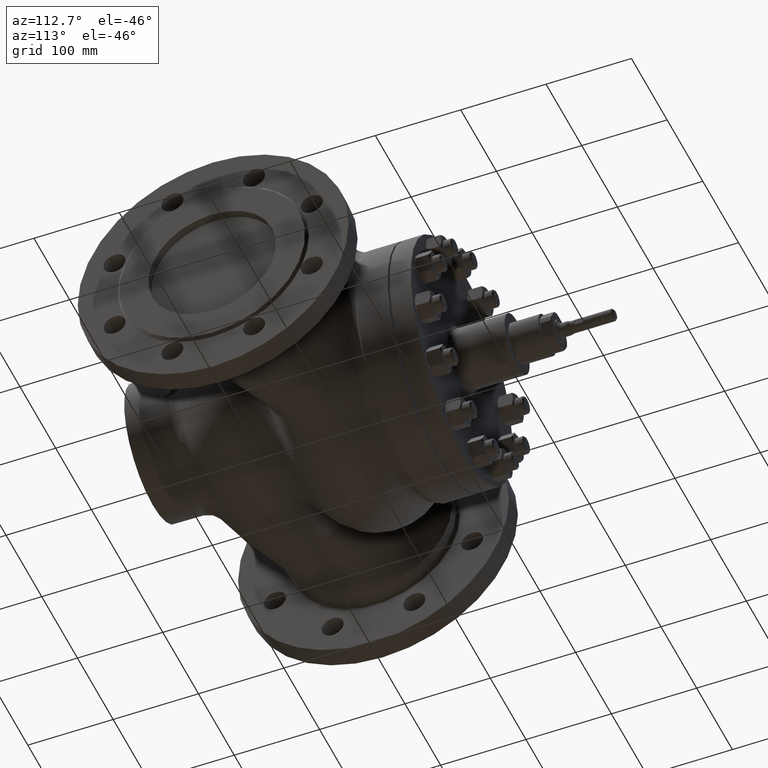
[diagram: clean part render]
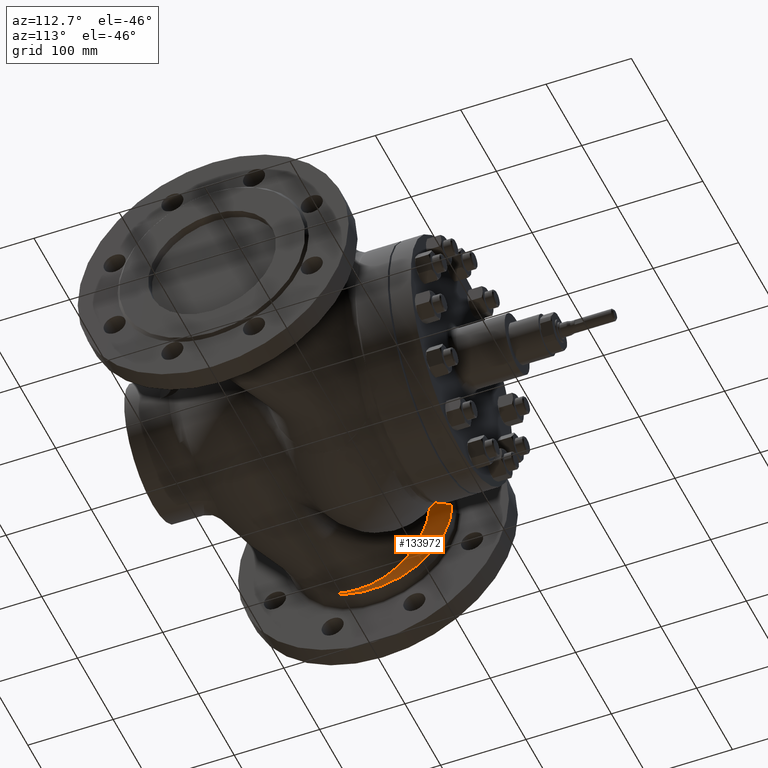
[diagram: same view with one face highlighted and labeled with its STEP entity id]
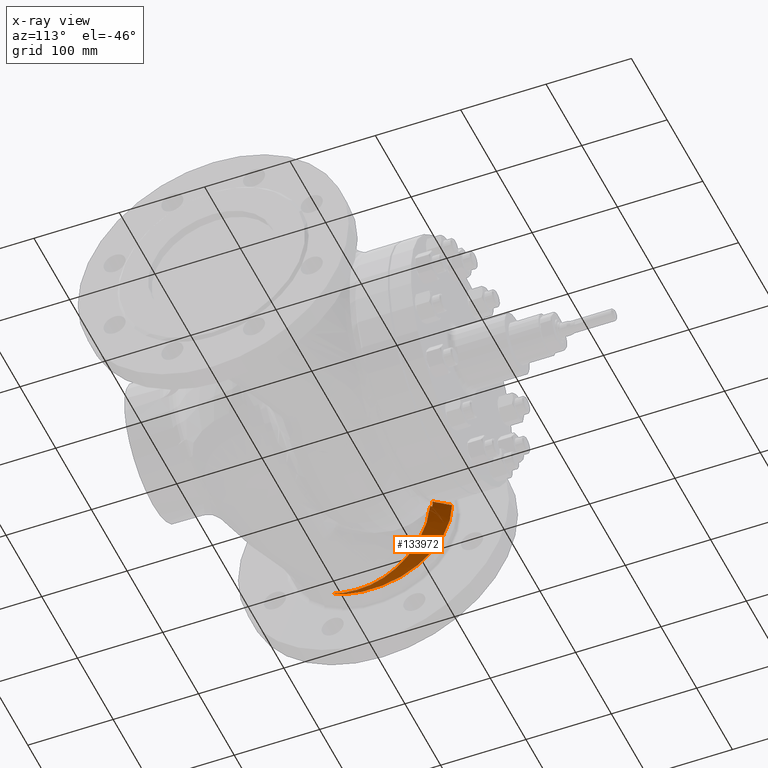
[diagram: x-ray of the same camera — body ghosted, the highlighted face saturated]
A machine part, auxiliary view. The second image highlights one B-rep face of the part: STEP entity #133972.
The next image is the same camera in x-ray: the body ghosted, the highlighted face saturated — about 1% of this face is hidden behind the body in this view.
In plain terms, the highlighted face is a freeform B-spline surface patch.
Its self-contained STEP definition (entity closure, byte-faithful):
#289 = CARTESIAN_POINT ( 'NONE',  ( -191.8175794426982700, 3.214944283689364000, -98.45283889971263100 ) ) ;
#450 = CARTESIAN_POINT ( 'NONE',  ( -193.3333333333332900, -49.92097353272462400, -87.57876151911243300 ) ) ;
#902 = CARTESIAN_POINT ( 'NONE',  ( -181.9740409912471600, 76.46312044660840000, -25.07533157837945100 ) ) ;
#963 = CARTESIAN_POINT ( 'NONE',  ( -188.6546077490848500, -39.32495430984335600, -90.30945669490455400 ) ) ;
#1126 = CARTESIAN_POINT ( 'NONE',  ( -186.6666666666668000, -25.31980540135791800, -93.80699280280528300 ) ) ;
#1584 = CARTESIAN_POINT ( 'NONE',  ( -183.7774007600126300, 58.95122802140115700, -63.39941368705834200 ) ) ;
#1810 = CARTESIAN_POINT ( 'NONE',  ( -179.9999999999998300, -5.918444033776837400, -92.14204834713319800 ) ) ;
#2254 = CARTESIAN_POINT ( 'NONE',  ( -186.1317036256428100, 31.08605916913197500, -87.58378693678510300 ) ) ;
#2485 = CARTESIAN_POINT ( 'NONE',  ( -199.9999999999999700, 25.16518651323065800, -100.1271344935774000 ) ) ;
#2934 = CARTESIAN_POINT ( 'NONE',  ( -187.4274231855169700, 11.17256158389363400, -94.83023557384648000 ) ) ;
#3159 = CARTESIAN_POINT ( 'NONE',  ( -193.3333333333332300, 35.86816296612467900, -91.55122125482365900 ) ) ;
#3603 = CARTESIAN_POINT ( 'NONE',  ( -188.2066662519728800, -15.26947508356077200, -96.08939294381762900 ) ) ;
#3834 = CARTESIAN_POINT ( 'NONE',  ( -186.6666666666665400, 52.68671211617257900, -74.04388472902307700 ) ) ;
#4494 = CARTESIAN_POINT ( 'NONE',  ( -180.0000000000001100, 63.12796588167109500, -50.58808316164950700 ) ) ;
#5156 = CARTESIAN_POINT ( 'NONE',  ( -199.9999999999995500, 101.3589498681718100, -20.26737986803755500 ) ) ;
#5741 = B_SPLINE_CURVE_WITH_KNOTS ( 'NONE', 3,
 ( #151098, #104029, #88985, #198181, #104695, #11227, #120393, #26931, #136077, #42624, #151762, #58337, #167488, #73998, #183172, #89660, #198847, #105362, #11889, #121076, #27587, #136726, #43298, #152431, #58998, #168145, #74669, #186599, #93103, #202278, #108789, #15305, #124493, #31035, #140170, #46745, #155892, #62459, #171588, #78092, #187290, #93782, #289, #109450, #15976, #125162, #31700, #140850, #47422, #156559, #63128, #172263, #78764, #187961, #94467, #963 ),
 .UNSPECIFIED., .F., .F.,
 ( 4, 2, 2, 2, 2, 2, 2, 2, 2, 2, 2, 2, 2, 2, 2, 2, 2, 2, 2, 2, 2, 2, 2, 2, 2, 2, 2, 4 ),
 ( 0.2136486100520226000, 0.2258004397348167000, 0.2318763545762137500, 0.2379522694176108000, 0.2501040991004048800, 0.2622559287831989800, 0.2683318436245960600, 0.2744077584659930800, 0.2865595881487871300, 0.2926355029901841500, 0.2956734604108827200, 0.2987114178315811700, 0.3108632475143752200, 0.3230150771971692600, 0.3290909920385662900, 0.3321289494592647400, 0.3351669068799632600, 0.3473187365627573000, 0.3533946514041542700, 0.3594705662455512900, 0.3625085236662498000, 0.3655464810869483200, 0.3716223959283453400, 0.3837742256111393300, 0.3959260552939333800, 0.3989640127146318900, 0.4020019701353304000, 0.4080778849767274200 ),
 .UNSPECIFIED. ) ;
#5839 = CARTESIAN_POINT ( 'NONE',  ( -193.3333333333333700, 94.50727232381753100, -1.582935171828836500E-013 ) ) ;
#6673 = CARTESIAN_POINT ( 'NONE',  ( -193.3333333333333400, 20.90188711694158700, 96.67262029826966300 ) ) ;
#7342 = CARTESIAN_POINT ( 'NONE',  ( -186.6666666666664900, 2.925801473457374500, 95.49382325450876900 ) ) ;
#8016 = CARTESIAN_POINT ( 'NONE',  ( -180.0000000000004000, -18.40886307866778500, 91.66279538185679600 ) ) ;
#8544 = CARTESIAN_POINT ( 'NONE',  ( -193.3333333333333700, 94.50727232381756000, 3.266557601915175200 ) ) ;
#8695 = CARTESIAN_POINT ( 'NONE',  ( -199.9999999999998600, -48.66894882667282500, 91.19017504635000600 ) ) ;
#9220 = CARTESIAN_POINT ( 'NONE',  ( -186.6666666666669400, 82.10724192835934300, 27.43536208644902200 ) ) ;
#9374 = CARTESIAN_POINT ( 'NONE',  ( -193.3333333333332900, -72.90135271258158400, 70.20790702958729000 ) ) ;
#9886 = CARTESIAN_POINT ( 'NONE',  ( -179.9999999999999100, 63.31864742485310400, 50.27370226677287900 ) ) ;
#10559 = CARTESIAN_POINT ( 'NONE',  ( -200.0000000000000900, 57.34325611503289400, 85.99995288766672300 ) ) ;
#11114 = B_SPLINE_SURFACE_WITH_KNOTS ( 'NONE', 3, 3, ( 
 ( #70646, #179820, #86308, #195502 ),
 ( #102012, #8544, #117712, #24234 ),
 ( #133413, #39933, #149080, #55661 ),
 ( #164796, #71321, #180481, #86991 ),
 ( #196183, #102684, #9220, #118390 ),
 ( #24917, #134080, #40608, #149758 ),
 ( #56329, #165461, #71988, #181153 ),
 ( #87647, #196852, #103351, #9886 ),
 ( #119061, #25582, #134736, #41286 ),
 ( #150435, #57001, #166133, #72660 ),
 ( #181839, #88323, #197515, #104032 ),
 ( #10559, #119735, #26257, #135408 ),
 ( #41953, #151101, #57673, #166802 ),
 ( #73332, #182513, #88988, #198184 ),
 ( #104698, #11230, #120395, #26934 ),
 ( #136079, #42627, #151764, #58339 ),
 ( #167491, #74001, #183175, #89662 ),
 ( #41309, #6673, #115837, #22361 ),
 ( #131535, #38065, #147202, #53788 ),
 ( #162922, #69467, #178614, #85114 ),
 ( #194322, #100819, #7342, #116513 ),
 ( #23035, #132207, #38743, #147881 ),
 ( #54462, #163594, #70134, #179287 ),
 ( #85783, #194991, #101493, #8016 ),
 ( #117188, #23718, #132892, #39412 ),
 ( #148566, #55143, #164269, #70795 ),
 ( #179965, #86462, #195653, #102163 ),
 ( #8695, #117861, #24387, #133555 ),
 ( #40086, #149234, #55809, #164947 ),
 ( #71469, #180632, #87130, #196339 ),
 ( #102830, #9374, #118544, #25064 ),
 ( #136956, #43533, #152661, #59227 ),
 ( #168374, #74901, #184066, #90556 ),
 ( #199734, #106255, #12772, #121953 ),
 ( #28484, #137626, #44192, #153332 ),
 ( #59897, #169039, #75561, #184746 ),
 ( #91229, #200407, #106923, #13451 ),
 ( #122618, #29148, #138299, #44873 ),
 ( #154003, #60577, #169712, #76232 ),
 ( #185408, #91908, #201083, #107587 ),
 ( #14120, #123302, #29828, #138969 ),
 ( #45558, #154690, #61245, #170391 ),
 ( #76902, #186085, #92582, #201769 ),
 ( #108267, #14791, #123975, #30514 ),
 ( #139647, #46232, #155374, #61929 ),
 ( #171068, #77584, #186761, #93263 ),
 ( #202436, #108947, #15462, #124654 ),
 ( #31193, #140334, #46900, #156050 ),
 ( #62618, #171743, #78253, #187447 ),
 ( #93944, #450, #109606, #16138 ),
 ( #125322, #31858, #141007, #47586 ),
 ( #156716, #63290, #172424, #78924 ),
 ( #188121, #94624, #1126, #110279 ),
 ( #16803, #126015, #32537, #141684 ),
 ( #48257, #157399, #63957, #173094 ),
 ( #79599, #188803, #95291, #1810 ),
 ( #110958, #17487, #126691, #33230 ),
 ( #142364, #48943, #158089, #64653 ),
 ( #173773, #80276, #189489, #95968 ),
 ( #2485, #111645, #18164, #127365 ),
 ( #33899, #143043, #49617, #158760 ),
 ( #65324, #174444, #80943, #190156 ),
 ( #96647, #3159, #112311, #18850 ),
 ( #128034, #34566, #143701, #50290 ),
 ( #159428, #65988, #175116, #81610 ),
 ( #190808, #97312, #3834, #112983 ),
 ( #19515, #128700, #35234, #144363 ),
 ( #50942, #160094, #66652, #175777 ),
 ( #82276, #191474, #97968, #4494 ),
 ( #113658, #20184, #129361, #35902 ),
 ( #145033, #51609, #160752, #67313 ),
 ( #176444, #82939, #192138, #98640 ),
 ( #5156, #114328, #20867, #130042 ),
 ( #36572, #145715, #52285, #161411 ),
 ( #67969, #177127, #83605, #192806 ),
 ( #99322, #5839, #115003, #21542 ) ),
 .UNSPECIFIED., .T., .F., .F.,
 ( 4, 1, 1, 1, 1, 1, 1, 1, 1, 1, 1, 1, 1, 1, 1, 1, 1, 1, 1, 1, 1, 1, 1, 1, 1, 1, 1, 1, 1, 1, 1, 1, 1, 1, 1, 1, 1, 1, 1, 1, 1, 1, 1, 1, 1, 1, 1, 1, 1, 1, 1, 1, 1, 1, 1, 1, 1, 1, 1, 1, 1, 1, 1, 1, 1, 1, 1, 1, 1, 1, 1, 1, 1, 4 ),
 ( 4, 4 ),
 ( 0.0000000000000000000, 0.01562500000000000000, 0.03125000000000000000, 0.04687500000000000000, 0.06250000000000000000, 0.07812500000000000000, 0.09375000000000000000, 0.1093750000000000000, 0.1250000000000000000, 0.1406250000000000000, 0.1562500000000000000, 0.1718750000000000000, 0.1796875000000000000, 0.1875000000000000000, 0.1953125000000000000, 0.2031250000000000000, 0.2109375000000000000, 0.2187500000000000000, 0.2265625000000000000, 0.2343750000000000000, 0.2421875000000000000, 0.2500000000000000000, 0.2656250000000000000, 0.2812500000000000000, 0.2968750000000000000, 0.3125000000000000000, 0.3281250000000000000, 0.3437500000000000000, 0.3593750000000000000, 0.3750000000000000000, 0.3906250000000000000, 0.4062500000000000000, 0.4218750000000000000, 0.4375000000000000000, 0.4531250000000000000, 0.4687500000000000000, 0.4843750000000000000, 0.5000000000000000000, 0.5156250000000000000, 0.5312500000000000000, 0.5468750000000000000, 0.5625000000000000000, 0.5781250000000000000, 0.5937500000000000000, 0.6093750000000000000, 0.6250000000000000000, 0.6406250000000000000, 0.6562500000000000000, 0.6718750000000000000, 0.6875000000000000000, 0.7031250000000000000, 0.7187500000000000000, 0.7343750000000000000, 0.7500000000000000000, 0.7578125000000000000, 0.7656250000000000000, 0.7734375000000000000, 0.7812500000000000000, 0.7890625000000000000, 0.7968750000000000000, 0.8046875000000000000, 0.8125000000000000000, 0.8281250000000000000, 0.8437500000000000000, 0.8593750000000000000, 0.8750000000000000000, 0.8906250000000000000, 0.9062500000000000000, 0.9218750000000000000, 0.9375000000000000000, 0.9531250000000000000, 0.9687500000000000000, 0.9843750000000000000, 1.000000000000000000 ),
 ( 0.0000000000000000000, 1.000000000000000000 ),
 .UNSPECIFIED. ) ;
#11227 = CARTESIAN_POINT ( 'NONE',  ( -196.3372858734267400, 96.42469750391258300, -20.21745622065716200 ) ) ;
#11230 = CARTESIAN_POINT ( 'NONE',  ( -193.3333333333333400, 34.60685697703345200, 92.03445323915933300 ) ) ;
#11889 = CARTESIAN_POINT ( 'NONE',  ( -195.4276705261027000, 69.72095159282783100, -69.60882688781013900 ) ) ;
#12122 = FACE_OUTER_BOUND ( 'NONE', #154096, .T. ) ;
#12772 = CARTESIAN_POINT ( 'NONE',  ( -186.6666666666666900, -88.85087132218276900, 44.78204028736921300 ) ) ;
#13451 = CARTESIAN_POINT ( 'NONE',  ( -179.9999999999997400, -96.18180900876487300, 17.88619426304316600 ) ) ;
#14120 = CARTESIAN_POINT ( 'NONE',  ( -200.0000000000001100, -101.3589359882901100, -20.26332560898092400 ) ) ;
#14791 = CARTESIAN_POINT ( 'NONE',  ( -193.3333333333332900, -90.12668647088349900, -46.51418663265113200 ) ) ;
#15305 = CARTESIAN_POINT ( 'NONE',  ( -193.5699902588197300, 33.98741121868031500, -92.45623087751343400 ) ) ;
#15462 = CARTESIAN_POINT ( 'NONE',  ( -186.6666666666668300, -73.05815852358792000, -66.95023891837917100 ) ) ;
#15976 = CARTESIAN_POINT ( 'NONE',  ( -191.5137780884690500, -1.891934551497569200, -98.50275582375235200 ) ) ;
#16138 = CARTESIAN_POINT ( 'NONE',  ( -180.0000000000001100, -52.42502294482810000, -80.35593446463718700 ) ) ;
#16579 = CARTESIAN_POINT ( 'NONE',  ( -182.1689488686512000, 74.68654650347249900, -31.93564134231031900 ) ) ;
#16803 = CARTESIAN_POINT ( 'NONE',  ( -199.9999999999998900, -10.23639697236889700, -102.8603672440106300 ) ) ;
#17259 = CARTESIAN_POINT ( 'NONE',  ( -184.4174853275628700, 52.12244406002383800, -71.49329197176149400 ) ) ;
#17487 = CARTESIAN_POINT ( 'NONE',  ( -193.3333333333333700, 6.295745206194295600, -99.13572239912637900 ) ) ;
#17929 = CARTESIAN_POINT ( 'NONE',  ( -186.4195012294109400, 27.10434208425719400, -89.56293560142651700 ) ) ;
#18164 = CARTESIAN_POINT ( 'NONE',  ( -186.6666666666668000, 16.03662267350373900, -93.36356765977041100 ) ) ;
#18621 = CARTESIAN_POINT ( 'NONE',  ( -187.5377608452828900, 8.561672534316166100, -95.32096621922363500 ) ) ;
#18850 = CARTESIAN_POINT ( 'NONE',  ( -179.9999999999996300, 25.45628341946112600, -85.09936438821598900 ) ) ;
#19285 = CARTESIAN_POINT ( 'NONE',  ( -188.3158234541196500, -20.52605839223695100, -95.40571550997682900 ) ) ;
#19515 = CARTESIAN_POINT ( 'NONE',  ( -200.0000000000000300, 73.09346063351441100, -73.09355443987844600 ) ) ;
#20184 = CARTESIAN_POINT ( 'NONE',  ( -193.3333333333332900, 83.24944419325412100, -46.72821687180075400 ) ) ;
#20867 = CARTESIAN_POINT ( 'NONE',  ( -186.6666666666665400, 84.21819032871560800, -18.54573146150572100 ) ) ;
#21542 = CARTESIAN_POINT ( 'NONE',  ( -180.0000000000000000, 77.12181697145258900, 6.505213034913026600E-016 ) ) ;
#22361 = CARTESIAN_POINT ( 'NONE',  ( -180.0000000000002000, 12.37528832436274400, 89.76359190765451500 ) ) ;
#23035 = CARTESIAN_POINT ( 'NONE',  ( -199.9999999999999400, 5.118198484677392000, 103.1150649654539700 ) ) ;
#23718 = CARTESIAN_POINT ( 'NONE',  ( -193.3333333333333700, -22.53642734311320300, 97.64031377368610300 ) ) ;
#24234 = CARTESIAN_POINT ( 'NONE',  ( -180.0000000000000000, 77.12181697145264500, 2.957281018545941700 ) ) ;
#24387 = CARTESIAN_POINT ( 'NONE',  ( -186.6666666666667400, -50.72350222593021800, 84.22553335313273200 ) ) ;
#24917 = CARTESIAN_POINT ( 'NONE',  ( -200.0000000000000900, 95.49454365704477300, 39.55628081678856500 ) ) ;
#25064 = CARTESIAN_POINT ( 'NONE',  ( -179.9999999999999700, -72.51713750801234000, 64.43680045044899900 ) ) ;
#25582 = CARTESIAN_POINT ( 'NONE',  ( -193.3333333333332900, 72.78217590921842400, 62.87212608693781800 ) ) ;
#26257 = CARTESIAN_POINT ( 'NONE',  ( -186.6666666666664600, 45.76530889203857600, 79.54219655061228900 ) ) ;
#26931 = CARTESIAN_POINT ( 'NONE',  ( -196.2820423369703900, 94.48241550986539000, -28.14120076851618500 ) ) ;
#26934 = CARTESIAN_POINT ( 'NONE',  ( -179.9999999999999100, 24.80387158644391100, 85.34016561455919700 ) ) ;
#27587 = CARTESIAN_POINT ( 'NONE',  ( -195.3041321139222400, 66.77114055987164000, -72.42175374431462800 ) ) ;
#28484 = CARTESIAN_POINT ( 'NONE',  ( -200.0000000000000000, -95.49453977081211100, 39.55513350599662200 ) ) ;
#29148 = CARTESIAN_POINT ( 'NONE',  ( -193.3333333333333700, -101.0517440097632800, 9.863056112734256000 ) ) ;
#29828 = CARTESIAN_POINT ( 'NONE',  ( -186.6666666666667100, -97.98838857007602600, -18.24515297531839400 ) ) ;
#30514 = CARTESIAN_POINT ( 'NONE',  ( -180.0000000000000900, -87.99970926419106800, -42.20466224610571300 ) ) ;
#30598 = VERTEX_POINT ( 'NONE', #165153 ) ;
#31035 = CARTESIAN_POINT ( 'NONE',  ( -193.2127155722365600, 28.20707745973740500, -94.46289799593243700 ) ) ;
#31193 = CARTESIAN_POINT ( 'NONE',  ( -199.9999999999998600, -65.49503772045255800, -79.97148913897082400 ) ) ;
#31335 = B_SPLINE_CURVE_WITH_KNOTS ( 'NONE', 3,
 ( #156498, #47359, #78704, #187896, #94403, #902, #110051, #16579, #125783, #32311, #141458, #48027, #157170, #63737, #172871, #79368, #188577, #95070, #1584, #110726, #17259, #126467, #32996, #142136, #48712, #157858, #64417, #173541, #80044, #189262, #95741, #2254, #111416, #17929, #127140, #33675, #142817, #49391, #158535, #65100, #174221, #80728, #189934, #96422, #2934, #112090, #18621, #127812, #34346, #143479, #50060, #159198, #65760, #174890, #81385, #190582, #97087, #3603, #112754, #19285, #128479, #35009, #144140, #50718, #159868, #66434 ),
 .UNSPECIFIED., .F., .F.,
 ( 4, 2, 2, 2, 2, 2, 2, 2, 2, 2, 2, 2, 2, 2, 2, 2, 2, 2, 2, 2, 2, 2, 2, 2, 2, 2, 2, 2, 2, 2, 2, 2, 4 ),
 ( 0.007485876484191446300, 0.01813539839246488700, 0.02346015934660161000, 0.02878492030073833600, 0.03943444220901179400, 0.05008396411728525300, 0.05540872507142199200, 0.05807110554849036900, 0.06073348602555874600, 0.07138300793383228800, 0.08203252984210585000, 0.08469491031917422700, 0.08735729079624260400, 0.09268205175037933000, 0.09800681270451608300, 0.1033315736586528100, 0.1086563346127895600, 0.1113187150898579100, 0.1139810955669262900, 0.1193058565210630100, 0.1219682369981313600, 0.1246306174751997400, 0.1272929979522680900, 0.1299553784293364700, 0.1326177589064048100, 0.1352801393834732200, 0.1406049003376099400, 0.1459296612917467000, 0.1512544222458834200, 0.1565791832000201800, 0.1619039441541569000, 0.1672287051082936600, 0.1778782270165671100 ),
 .UNSPECIFIED. ) ;
#31700 = CARTESIAN_POINT ( 'NONE',  ( -190.8590657999684800, -12.00087353249010600, -97.84971515619895400 ) ) ;
#31858 = CARTESIAN_POINT ( 'NONE',  ( -193.3333333333332900, -41.23304395628778700, -91.79526305463610900 ) ) ;
#32311 = CARTESIAN_POINT ( 'NONE',  ( -182.5508128301387400, 71.14843193086075200, -41.88014577521986600 ) ) ;
#32537 = CARTESIAN_POINT ( 'NONE',  ( -186.6666666666665200, -16.21885150560016000, -95.32981032166088700 ) ) ;
#32996 = CARTESIAN_POINT ( 'NONE',  ( -184.7558962741175300, 48.29004910800653500, -75.19265442431554900 ) ) ;
#33230 = CARTESIAN_POINT ( 'NONE',  ( -180.0000000000002800, -1.533191236860087700, -91.93444216601253100 ) ) ;
#33675 = CARTESIAN_POINT ( 'NONE',  ( -186.5873019407017600, 24.65615053955227500, -90.64430489146367600 ) ) ;
#33899 = CARTESIAN_POINT ( 'NONE',  ( -199.9999999999998900, 30.02759295108204200, -98.77818380116195800 ) ) ;
#34346 = CARTESIAN_POINT ( 'NONE',  ( -187.6302069509073600, 5.925789170406424900, -95.72354982757737200 ) ) ;
#34566 = CARTESIAN_POINT ( 'NONE',  ( -193.3333333333333700, 43.12567656552551700, -88.00896419622898700 ) ) ;
#35009 = CARTESIAN_POINT ( 'NONE',  ( -188.4221331941022600, -25.76497145674249000, -94.41575805987969300 ) ) ;
#35234 = CARTESIAN_POINT ( 'NONE',  ( -186.6666666666668300, 59.37835338323957000, -67.58151766447012700 ) ) ;
#35235 = CARTESIAN_POINT ( 'NONE',  ( -183.1115267623489400, 81.17896519179053900, -2.496040549049079300 ) ) ;
#35902 = CARTESIAN_POINT ( 'NONE',  ( -179.9999999999999100, 67.36798658760496000, -42.84798057258922900 ) ) ;
#36572 = CARTESIAN_POINT ( 'NONE',  ( -200.0000000000002000, 102.8603395705078800, -10.22849016503103800 ) ) ;
#38065 = CARTESIAN_POINT ( 'NONE',  ( -193.3333333333333400, 16.16379470551474300, 97.72655103205852400 ) ) ;
#38643 = CARTESIAN_POINT ( 'NONE',  ( -182.1972419402206400, 79.70103280339149900, -7.500000000000029300 ) ) ;
#38743 = CARTESIAN_POINT ( 'NONE',  ( -186.6666666666668300, -1.701686463142540600, 95.78495156320920500 ) ) ;
#39412 = CARTESIAN_POINT ( 'NONE',  ( -179.9999999999996000, -27.08263081279285700, 90.20306898094611400 ) ) ;
#39933 = CARTESIAN_POINT ( 'NONE',  ( -193.3333333333334600, 94.19243213872393000, 9.764133536988280700 ) ) ;
#40086 = CARTESIAN_POINT ( 'NONE',  ( -200.0000000000000000, -57.34325602368602400, 85.99992593353178400 ) ) ;
#40608 = CARTESIAN_POINT ( 'NONE',  ( -186.6666666666664000, 79.13202779066278900, 36.22075274957727200 ) ) ;
#41286 = CARTESIAN_POINT ( 'NONE',  ( -180.0000000000001100, 58.40355062428464800, 57.62665450748831800 ) ) ;
#41309 = CARTESIAN_POINT ( 'NONE',  ( -199.9999999999998900, 25.16518651323100300, 100.1271344935772400 ) ) ;
#41953 = CARTESIAN_POINT ( 'NONE',  ( -199.9999999999998600, 50.11466666726334300, 90.32512601314391500 ) ) ;
#42624 = CARTESIAN_POINT ( 'NONE',  ( -196.1588882782177700, 90.30142895257807800, -39.55139646646015400 ) ) ;
#42627 = CARTESIAN_POINT ( 'NONE',  ( -193.3333333333334300, 30.13070391522764200, 93.81942486006957400 ) ) ;
#43298 = CARTESIAN_POINT ( 'NONE',  ( -195.2052657726194700, 64.48093438012638500, -74.46819088533203500 ) ) ;
#43533 = CARTESIAN_POINT ( 'NONE',  ( -193.3333333333332900, -79.38703274592765500, 62.92367894565599300 ) ) ;
#44192 = CARTESIAN_POINT ( 'NONE',  ( -186.6666666666665700, -92.68517860791956800, 36.39010310272938400 ) ) ;
#44873 = CARTESIAN_POINT ( 'NONE',  ( -180.0000000000002300, -97.43449686212510100, 9.116374395841010200 ) ) ;
#45558 = CARTESIAN_POINT ( 'NONE',  ( -199.9999999999998600, -98.89533492106980400, -30.06704742389657900 ) ) ;
#46232 = CARTESIAN_POINT ( 'NONE',  ( -193.3333333333332900, -85.22221020225806900, -54.88522781973328800 ) ) ;
#46745 = CARTESIAN_POINT ( 'NONE',  ( -192.6512152717027400, 18.36261341719526300, -96.79439968490896700 ) ) ;
#46900 = CARTESIAN_POINT ( 'NONE',  ( -186.6666666666664000, -66.28443867060816800, -73.38079219029839400 ) ) ;
#47359 = CARTESIAN_POINT ( 'NONE',  ( -181.7047364507635100, 78.78854468310035500, -11.04424971519622100 ) ) ;
#47422 = CARTESIAN_POINT ( 'NONE',  ( -189.9752756264073000, -23.93186537018379700, -95.63580222326746100 ) ) ;
#47586 = CARTESIAN_POINT ( 'NONE',  ( -179.9999999999998000, -44.58886485791968800, -84.39670951812134100 ) ) ;
#48027 = CARTESIAN_POINT ( 'NONE',  ( -182.9384488492725600, 67.39260295143049000, -49.84791156221949400 ) ) ;
#48257 = CARTESIAN_POINT ( 'NONE',  ( -200.0000000000000600, -1.706066160272181800, -103.2848641510565800 ) ) ;
#48712 = CARTESIAN_POINT ( 'NONE',  ( -184.9276624178702100, 46.30445011466713400, -76.98490826278403200 ) ) ;
#48943 = CARTESIAN_POINT ( 'NONE',  ( -193.3333333333333400, 11.11006846975871200, -98.57582228732066200 ) ) ;
#49391 = CARTESIAN_POINT ( 'NONE',  ( -186.8088577389392000, 21.35761260958144800, -91.95407283022123600 ) ) ;
#49617 = CARTESIAN_POINT ( 'NONE',  ( -186.6666666666664300, 20.51159506397263900, -92.14040383690452500 ) ) ;
#50045 = VERTEX_POINT ( 'NONE', #160177 ) ;
#50060 = CARTESIAN_POINT ( 'NONE',  ( -187.7199686517801900, 3.267093746669102600, -96.04675019852739100 ) ) ;
#50189 = VERTEX_POINT ( 'NONE', #67392 ) ;
#50290 = CARTESIAN_POINT ( 'NONE',  ( -180.0000000000004000, 32.03913214115819100, -81.64657131220799600 ) ) ;
#50718 = CARTESIAN_POINT ( 'NONE',  ( -188.5478021285360900, -32.67501748806820700, -92.67091310365061900 ) ) ;
#50942 = CARTESIAN_POINT ( 'NONE',  ( -199.9999999999998900, 79.97148855168497100, -65.49486187666271100 ) ) ;
#51609 = CARTESIAN_POINT ( 'NONE',  ( -193.3333333333332600, 87.30209750598525900, -37.92029849943205700 ) ) ;
#52285 = CARTESIAN_POINT ( 'NONE',  ( -186.6666666666668000, 85.52003515742752900, -9.367399912201170400 ) ) ;
#53788 = CARTESIAN_POINT ( 'NONE',  ( -179.9999999999998900, 8.020534597647046100, 90.70232149684207500 ) ) ;
#54462 = CARTESIAN_POINT ( 'NONE',  ( -200.0000000000000000, -1.706066160271768200, 103.2848641510566000 ) ) ;
#55143 = CARTESIAN_POINT ( 'NONE',  ( -193.3333333333332900, -31.89577387634712800, 95.23101896146786800 ) ) ;
#55661 = CARTESIAN_POINT ( 'NONE',  ( -180.0000000000003700, 76.85661727515648100, 8.835420280903616000 ) ) ;
#55809 = CARTESIAN_POINT ( 'NONE',  ( -186.6666666666665200, -58.53938894143004000, 79.36742032427251600 ) ) ;
#56329 = CARTESIAN_POINT ( 'NONE',  ( -199.9999999999998300, 91.19017299607868700, 48.66833502140620700 ) ) ;
#57001 = CARTESIAN_POINT ( 'NONE',  ( -193.3333333333333400, 66.33536004784980400, 70.22517055791415400 ) ) ;
#57673 = CARTESIAN_POINT ( 'NONE',  ( -186.6666666666668600, 39.26842831408475100, 83.75298701143050600 ) ) ;
#58337 = CARTESIAN_POINT ( 'NONE',  ( -196.0115905202429200, 85.67981473313098200, -48.63538561557679400 ) ) ;
#58339 = CARTESIAN_POINT ( 'NONE',  ( -180.0000000000003400, 20.76993080379846600, 87.06839629729694300 ) ) ;
#58998 = CARTESIAN_POINT ( 'NONE',  ( -194.8779032842404600, 57.30620553967217700, -80.21629874995136300 ) ) ;
#59227 = CARTESIAN_POINT ( 'NONE',  ( -180.0000000000000000, -78.21811994385073800, 57.78096140069366300 ) ) ;
#59897 = CARTESIAN_POINT ( 'NONE',  ( -199.9999999999998900, -98.89533492107007400, 30.06704742389691600 ) ) ;
#60577 = CARTESIAN_POINT ( 'NONE',  ( -193.3333333333333700, -101.5364575584317400, 0.1221629052761824500 ) ) ;
#61245 = CARTESIAN_POINT ( 'NONE',  ( -186.6666666666666600, -95.83685129291409100, -27.22895721602729300 ) ) ;
#61929 = CARTESIAN_POINT ( 'NONE',  ( -179.9999999999998300, -83.66677876956291000, -49.96917140927811800 ) ) ;
#62459 = CARTESIAN_POINT ( 'NONE',  ( -192.3313596340632900, 12.36204516402194800, -97.74218351478471300 ) ) ;
#62618 = CARTESIAN_POINT ( 'NONE',  ( -200.0000000000001100, -57.34325602368665600, -85.99992593353150000 ) ) ;
#63128 = CARTESIAN_POINT ( 'NONE',  ( -189.4892280849468000, -29.80905456323810300, -93.88670899454177700 ) ) ;
#63290 = CARTESIAN_POINT ( 'NONE',  ( -193.3333333333332900, -32.14449822717467200, -95.14882981543782100 ) ) ;
#63737 = CARTESIAN_POINT ( 'NONE',  ( -183.1556199960317300, 65.25381065371706800, -53.72858098475082000 ) ) ;
#63957 = CARTESIAN_POINT ( 'NONE',  ( -186.6666666666668300, -8.444715970974424800, -95.84820090748264900 ) ) ;
#64417 = CARTESIAN_POINT ( 'NONE',  ( -185.2174546946870400, 42.89511811000119900, -79.83330273738755500 ) ) ;
#64653 = CARTESIAN_POINT ( 'NONE',  ( -179.9999999999998600, 2.830482825685771300, -91.50816226117211700 ) ) ;
#65100 = CARTESIAN_POINT ( 'NONE',  ( -187.0730043645562000, 17.15951360672794100, -93.31882987984677400 ) ) ;
#65324 = CARTESIAN_POINT ( 'NONE',  ( -199.9999999999999400, 34.81109047094186300, -97.19493914145611800 ) ) ;
#65760 = CARTESIAN_POINT ( 'NONE',  ( -187.8586006815797900, -1.166674062118038300, -96.41689038580011600 ) ) ;
#65988 = CARTESIAN_POINT ( 'NONE',  ( -193.3333333333333400, 51.38858522205095600, -82.89608358225766000 ) ) ;
#66434 = CARTESIAN_POINT ( 'NONE',  ( -188.6546077490848500, -39.32495430984335600, -90.30945669490455400 ) ) ;
#66652 = CARTESIAN_POINT ( 'NONE',  ( -186.6666666666665700, 65.44841188431850300, -60.44541009566969300 ) ) ;
#67313 = CARTESIAN_POINT ( 'NONE',  ( -180.0000000000000000, 70.91720520386743900, -34.64833386471803300 ) ) ;
#67392 = CARTESIAN_POINT ( 'NONE',  ( -183.2357956800813400, 81.05590492691305800, -7.500000000000000000 ) ) ;
#67969 = CARTESIAN_POINT ( 'NONE',  ( -200.0000000000000000, 103.1999999999999900, -3.421195893600266700 ) ) ;
#67970 = CARTESIAN_POINT ( 'NONE',  ( -183.2357956800813400, 81.05590492691305800, -7.500000000000000000 ) ) ;
#69467 = CARTESIAN_POINT ( 'NONE',  ( -193.3333333333333700, 11.38841948718968100, 98.53972701837591300 ) ) ;
#70134 = CARTESIAN_POINT ( 'NONE',  ( -186.6666666666664000, -7.901422669912701500, 95.86925241421690200 ) ) ;
#70646 = CARTESIAN_POINT ( 'NONE',  ( -200.0000000000000000, 103.1999999999999900, -2.380907970778167700E-013 ) ) ;
#70795 = CARTESIAN_POINT ( 'NONE',  ( -180.0000000000003700, -35.55322678022223900, 87.90238723685637000 ) ) ;
#71321 = CARTESIAN_POINT ( 'NONE',  ( -193.3333333333332300, 92.79801593260683000, 19.35302197594494100 ) ) ;
#71469 = CARTESIAN_POINT ( 'NONE',  ( -199.9999999999999100, -65.49503772045264300, 79.97148913897095200 ) ) ;
#71988 = CARTESIAN_POINT ( 'NONE',  ( -186.6666666666668300, 75.38817983590800500, 44.61772993411667400 ) ) ;
#72068 = CARTESIAN_POINT ( 'NONE',  ( -181.6779614552851900, 79.02359951267060000, -7.499999999989517700 ) ) ;
#72221 = ORIENTED_EDGE ( 'NONE', *, *, #141886, .T. ) ;
#72660 = CARTESIAN_POINT ( 'NONE',  ( -179.9999999999998900, 52.81915887652003500, 64.48840279398668000 ) ) ;
#73332 = CARTESIAN_POINT ( 'NONE',  ( -199.9999999999999400, 44.11204115475790400, 93.34235406817209900 ) ) ;
#73998 = CARTESIAN_POINT ( 'NONE',  ( -195.9049116706607900, 82.47999467974534600, -53.88393525402267400 ) ) ;
#74001 = CARTESIAN_POINT ( 'NONE',  ( -193.3333333333332300, 25.56340076037830000, 95.36673455477111400 ) ) ;
#74669 = CARTESIAN_POINT ( 'NONE',  ( -194.3463121886660800, 47.00970165152285300, -86.65344426929466700 ) ) ;
#74901 = CARTESIAN_POINT ( 'NONE',  ( -193.3333333333333700, -85.09460518825692100, 55.08918032529825100 ) ) ;
#75561 = CARTESIAN_POINT ( 'NONE',  ( -186.6666666666667700, -95.70441052775513000, 27.69796537052880200 ) ) ;
#76232 = CARTESIAN_POINT ( 'NONE',  ( -179.9999999999999100, -97.86984687912689700, 0.3664887158281899800 ) ) ;
#76902 = CARTESIAN_POINT ( 'NONE',  ( -200.0000000000000300, -95.49453977081248000, -39.55513350599613900 ) ) ;
#77584 = CARTESIAN_POINT ( 'NONE',  ( -193.3333333333332900, -79.54163999351968100, -62.72250057469161500 ) ) ;
#78092 = CARTESIAN_POINT ( 'NONE',  ( -192.0505548869416000, 7.301074381426687400, -98.23431879110957300 ) ) ;
#78253 = CARTESIAN_POINT ( 'NONE',  ( -186.6666666666668000, -58.95833467387388500, -79.06821852811961500 ) ) ;
#78704 = CARTESIAN_POINT ( 'NONE',  ( -181.7530529276008300, 78.38951967817384100, -14.57147257096698700 ) ) ;
#78764 = CARTESIAN_POINT ( 'NONE',  ( -189.2418846810992100, -32.71355809500494200, -92.91452482549668400 ) ) ;
#78924 = CARTESIAN_POINT ( 'NONE',  ( -180.0000000000000900, -36.29939983270438800, -87.65581979876549200 ) ) ;
#79368 = CARTESIAN_POINT ( 'NONE',  ( -183.2920593027917000, 63.88652344768384900, -56.02380129668367900 ) ) ;
#79599 = CARTESIAN_POINT ( 'NONE',  ( -199.9999999999999400, 5.118198484677016300, -103.1150649654539700 ) ) ;
#80044 = CARTESIAN_POINT ( 'NONE',  ( -185.5649806876089700, 38.62501882737942800, -82.97964330253094500 ) ) ;
#80276 = CARTESIAN_POINT ( 'NONE',  ( -193.3333333333334300, 15.87914954797385600, -97.77751413140293800 ) ) ;
#80728 = CARTESIAN_POINT ( 'NONE',  ( -187.2267469050638300, 14.60932737779508300, -94.02364975707374100 ) ) ;
#80943 = CARTESIAN_POINT ( 'NONE',  ( -186.6666666666669100, 24.92324286357500900, -90.64913617676305100 ) ) ;
#81385 = CARTESIAN_POINT ( 'NONE',  ( -188.0003690733691100, -6.469786288148472200, -96.55019928366229500 ) ) ;
#81610 = CARTESIAN_POINT ( 'NONE',  ( -179.9999999999998900, 39.47924343608788400, -76.68834497143873800 ) ) ;
#82276 = CARTESIAN_POINT ( 'NONE',  ( -200.0000000000000900, 85.99992703074616400, -57.34358454109445100 ) ) ;
#82939 = CARTESIAN_POINT ( 'NONE',  ( -193.3333333333335400, 90.48763779190433400, -28.79660131002314200 ) ) ;
#83605 = CARTESIAN_POINT ( 'NONE',  ( -186.6666666666666900, 85.81454464763501700, -3.111919310230716100 ) ) ;
#85114 = CARTESIAN_POINT ( 'NONE',  ( -180.0000000000003100, 3.665535877977951400, 91.39987645433815500 ) ) ;
#85729 = CARTESIAN_POINT ( 'NONE',  ( -191.9674785180104400, 92.72632173059685100, -1.420730385060165500E-013 ) ) ;
#85783 = CARTESIAN_POINT ( 'NONE',  ( -199.9999999999997200, -10.23639697236860800, 102.8603672440105300 ) ) ;
#86308 = CARTESIAN_POINT ( 'NONE',  ( -186.6666666666666900, 85.81454464763506000, -7.892991815694472300E-014 ) ) ;
#86462 = CARTESIAN_POINT ( 'NONE',  ( -193.3333333333333700, -40.99289038582976700, 91.90288561344377200 ) ) ;
#86855 = B_SPLINE_CURVE_WITH_KNOTS ( 'NONE', 3,
 ( #163538, #85729, #194936, #101435 ),
 .UNSPECIFIED., .F., .F.,
 ( 4, 4 ),
 ( 0.1802272802079417900, 0.8444236618825526900 ),
 .UNSPECIFIED. ) ;
#86991 = CARTESIAN_POINT ( 'NONE',  ( -179.9999999999994600, 75.67614806147585700, 17.52430619176076100 ) ) ;
#87130 = CARTESIAN_POINT ( 'NONE',  ( -186.6666666666667400, -65.90207600639155300, 73.71583749113007400 ) ) ;
#87231 = EDGE_CURVE ( 'NONE', #50189, #154561, #125117, .T. ) ;
#87647 = CARTESIAN_POINT ( 'NONE',  ( -200.0000000000000300, 85.99992703074632100, 57.34358454109390400 ) ) ;
#88323 = CARTESIAN_POINT ( 'NONE',  ( -193.3333333333333700, 59.22565026785273500, 76.88305467865885100 ) ) ;
#88985 = CARTESIAN_POINT ( 'NONE',  ( -196.3883760228650000, 98.25097652458697400, -8.098372755412585300 ) ) ;
#88988 = CARTESIAN_POINT ( 'NONE',  ( -186.6666666666666600, 33.85530422308398400, 86.70003811157050700 ) ) ;
#89660 = CARTESIAN_POINT ( 'NONE',  ( -195.7406855005425000, 77.80920209621949400, -60.53487193404900800 ) ) ;
#89662 = CARTESIAN_POINT ( 'NONE',  ( -179.9999999999998300, 16.63501637897021000, 88.54383606198970800 ) ) ;
#90556 = CARTESIAN_POINT ( 'NONE',  ( -179.9999999999999700, -83.28396372756029100, 50.58102892597190700 ) ) ;
#91229 = CARTESIAN_POINT ( 'NONE',  ( -200.0000000000000300, -101.3589359882897600, 20.26332560898128000 ) ) ;
#91908 = CARTESIAN_POINT ( 'NONE',  ( -193.3333333333332900, -101.0740235996983100, -9.629044088027352900 ) ) ;
#92582 = CARTESIAN_POINT ( 'NONE',  ( -186.6666666666666900, -92.86505145928477100, -35.92984895277469100 ) ) ;
#93103 = CARTESIAN_POINT ( 'NONE',  ( -193.9188381625459400, 39.68730577293824500, -90.17397547491035000 ) ) ;
#93263 = CARTESIAN_POINT ( 'NONE',  ( -180.0000000000001400, -78.68194168662664400, -57.17742628780047200 ) ) ;
#93782 = CARTESIAN_POINT ( 'NONE',  ( -191.8768424793179000, 4.240975506723732900, -98.41397132283842100 ) ) ;
#93944 = CARTESIAN_POINT ( 'NONE',  ( -199.9999999999998600, -48.66894882667288200, -91.19017504635006300 ) ) ;
#94403 = CARTESIAN_POINT ( 'NONE',  ( -181.8906017795603700, 77.20667269020570700, -21.58787035984648000 ) ) ;
#94467 = CARTESIAN_POINT ( 'NONE',  ( -188.8247715315679600, -37.46774376360752300, -91.11817288640115500 ) ) ;
#94624 = CARTESIAN_POINT ( 'NONE',  ( -193.3333333333334300, -22.79156550481588500, -97.58296448643054100 ) ) ;
#95070 = CARTESIAN_POINT ( 'NONE',  ( -183.5758259104546500, 61.01915104314355900, -60.52801397320187200 ) ) ;
#95291 = CARTESIAN_POINT ( 'NONE',  ( -186.6666666666665400, -2.239563194292219600, -95.79972055324012100 ) ) ;
#95741 = CARTESIAN_POINT ( 'NONE',  ( -185.9041744011740900, 34.16528815258345700, -85.83890885608403200 ) ) ;
#95968 = CARTESIAN_POINT ( 'NONE',  ( -180.0000000000001400, 7.166599125025145500, -90.85521079487490700 ) ) ;
#96422 = CARTESIAN_POINT ( 'NONE',  ( -187.3796954914695900, 12.03585524340987900, -94.64315586209865200 ) ) ;
#96647 = CARTESIAN_POINT ( 'NONE',  ( -200.0000000000000000, 41.07410273945645000, -94.77714968812748000 ) ) ;
#97087 = CARTESIAN_POINT ( 'NONE',  ( -188.1278691052368400, -11.75537302949623200, -96.37495414014594500 ) ) ;
#97312 = CARTESIAN_POINT ( 'NONE',  ( -193.3333333333332300, 59.09087483302008800, -77.00766174642689100 ) ) ;
#97968 = CARTESIAN_POINT ( 'NONE',  ( -186.6666666666667700, 70.75195293136278000, -52.83991695479781500 ) ) ;
#98640 = CARTESIAN_POINT ( 'NONE',  ( -180.0000000000000900, 73.67225811711283300, -26.26000583011573000 ) ) ;
#99322 = CARTESIAN_POINT ( 'NONE',  ( -200.0000000000000000, 103.1999999999999900, -2.380907970778167700E-013 ) ) ;
#100379 = VERTEX_POINT ( 'NONE', #146561 ) ;
#100819 = CARTESIAN_POINT ( 'NONE',  ( -193.3333333333331700, 6.568007450589600000, 99.11509288509601800 ) ) ;
#101435 = CARTESIAN_POINT ( 'NONE',  ( -183.1115267623489400, 81.17896519179058100, -3.647868313493390400E-014 ) ) ;
#101493 = CARTESIAN_POINT ( 'NONE',  ( -186.6666666666668300, -15.68470770990139400, 95.39531933590804200 ) ) ;
#102012 = CARTESIAN_POINT ( 'NONE',  ( -200.0000000000000000, 103.1999999999999900, 3.421195893599790600 ) ) ;
#102163 = CARTESIAN_POINT ( 'NONE',  ( -179.9999999999999100, -43.86840414654673700, 84.71957719454353300 ) ) ;
#102684 = CARTESIAN_POINT ( 'NONE',  ( -193.3333333333333700, 90.50128477882941500, 28.75013056821273900 ) ) ;
#102830 = CARTESIAN_POINT ( 'NONE',  ( -199.9999999999999100, -73.09346031486622100, 73.09346031915644900 ) ) ;
#103112 = EDGE_CURVE ( 'NONE', #154561, #100379, #31335, .T. ) ;
#103351 = CARTESIAN_POINT ( 'NONE',  ( -186.6666666666666300, 70.87907396015084800, 52.63032969154654200 ) ) ;
#104029 = CARTESIAN_POINT ( 'NONE',  ( -196.3954543958412600, 98.50000000000001400, -4.051627008513754000 ) ) ;
#104032 = CARTESIAN_POINT ( 'NONE',  ( -180.0000000000003700, 46.68687570382286400, 70.70628650831550000 ) ) ;
#104695 = CARTESIAN_POINT ( 'NONE',  ( -196.3585335494607300, 97.18360261392700700, -16.18070479718224800 ) ) ;
#104698 = CARTESIAN_POINT ( 'NONE',  ( -200.0000000000000300, 39.50834967232822200, 95.38159705145942300 ) ) ;
#105362 = CARTESIAN_POINT ( 'NONE',  ( -195.4852859856709700, 71.14098887618622800, -68.15657820527145800 ) ) ;
#106255 = CARTESIAN_POINT ( 'NONE',  ( -193.3333333333332900, -90.02052319820624900, 46.72549455664657400 ) ) ;
#106923 = CARTESIAN_POINT ( 'NONE',  ( -186.6666666666665200, -97.90751800193982000, 18.67857137835586900 ) ) ;
#107587 = CARTESIAN_POINT ( 'NONE',  ( -180.0000000000001100, -97.50133563193027400, -8.414338321721027500 ) ) ;
#108267 = CARTESIAN_POINT ( 'NONE',  ( -199.9999999999998900, -91.19017507422970000, -48.66894882592384200 ) ) ;
#108789 = CARTESIAN_POINT ( 'NONE',  ( -193.6880724207518900, 35.90235424433238600, -91.72960105188632000 ) ) ;
#108947 = CARTESIAN_POINT ( 'NONE',  ( -193.3333333333334300, -73.07580941922732600, -70.02184961876761800 ) ) ;
#109450 = CARTESIAN_POINT ( 'NONE',  ( -191.6374220162750800, 0.1454947945516529800, -98.52115634677021200 ) ) ;
#109606 = CARTESIAN_POINT ( 'NONE',  ( -186.6666666666666900, -51.17299823877636600, -83.96734799187483100 ) ) ;
#110051 = CARTESIAN_POINT ( 'NONE',  ( -182.0195391536668400, 76.04949886840341800, -26.80250514179814300 ) ) ;
#110279 = CARTESIAN_POINT ( 'NONE',  ( -180.0000000000001700, -27.84804529789995400, -90.03102111918002500 ) ) ;
#110726 = CARTESIAN_POINT ( 'NONE',  ( -184.1954679130666100, 54.50140744442657600, -68.88105128526237300 ) ) ;
#110958 = CARTESIAN_POINT ( 'NONE',  ( -199.9999999999998900, 10.21021342772148600, -102.7363625156833100 ) ) ;
#111416 = CARTESIAN_POINT ( 'NONE',  ( -186.2488800007992300, 29.51537379146375900, -88.40862461963570200 ) ) ;
#111645 = CARTESIAN_POINT ( 'NONE',  ( -193.3333333333333700, 20.60090459336720100, -96.74535107667392700 ) ) ;
#112090 = CARTESIAN_POINT ( 'NONE',  ( -187.5063835370460800, 9.435465323832410400, -95.16913728788839000 ) ) ;
#112311 = CARTESIAN_POINT ( 'NONE',  ( -186.6666666666664300, 30.66222319279289700, -88.32529282151982400 ) ) ;
#112754 = CARTESIAN_POINT ( 'NONE',  ( -188.2432505999403800, -17.02362585675783200, -95.89536109026379100 ) ) ;
#112983 = CARTESIAN_POINT ( 'NONE',  ( -179.9999999999998600, 46.28254939932507700, -71.08010771161930600 ) ) ;
#113658 = CARTESIAN_POINT ( 'NONE',  ( -199.9999999999999100, 91.19017299607870100, -48.66833502140650600 ) ) ;
#114328 = CARTESIAN_POINT ( 'NONE',  ( -193.3333333333330600, 92.78857009844371400, -19.40655566477163800 ) ) ;
#115003 = CARTESIAN_POINT ( 'NONE',  ( -186.6666666666666900, 85.81454464763506000, -7.892991815694472300E-014 ) ) ;
#115837 = CARTESIAN_POINT ( 'NONE',  ( -186.6666666666667700, 16.63858772065216100, 93.21810610296209600 ) ) ;
#116513 = CARTESIAN_POINT ( 'NONE',  ( -179.9999999999998000, -0.7164045036748513100, 91.87255362392151900 ) ) ;
#117188 = CARTESIAN_POINT ( 'NONE',  ( -200.0000000000002600, -20.26332560827337300, 101.3589361700561100 ) ) ;
#117712 = CARTESIAN_POINT ( 'NONE',  ( -186.6666666666666900, 85.81454464763510300, 3.111919310230558000 ) ) ;
#117861 = CARTESIAN_POINT ( 'NONE',  ( -193.3333333333332900, -49.69622552630151800, 87.70785419974136200 ) ) ;
#118390 = CARTESIAN_POINT ( 'NONE',  ( -180.0000000000005400, 73.71319907788928600, 26.12059360468530800 ) ) ;
#118544 = CARTESIAN_POINT ( 'NONE',  ( -186.6666666666666600, -72.70924511029696200, 67.32235374001814400 ) ) ;
#118593 = EDGE_CURVE ( 'NONE', #30598, #50189, #123116, .T. ) ;
#119061 = CARTESIAN_POINT ( 'NONE',  ( -199.9999999999998900, 79.97148855168529700, 65.49486187666258300 ) ) ;
#119735 = CARTESIAN_POINT ( 'NONE',  ( -193.3333333333332900, 51.55428250353573800, 82.77107471913950600 ) ) ;
#120393 = CARTESIAN_POINT ( 'NONE',  ( -196.3248230057958800, 95.98354815976506400, -22.21619877432355800 ) ) ;
#120395 = CARTESIAN_POINT ( 'NONE',  ( -186.6666666666666300, 29.70536428173868200, 88.68730942685925800 ) ) ;
#121076 = CARTESIAN_POINT ( 'NONE',  ( -195.3356896331882500, 67.51774430487520800, -71.72615751528960000 ) ) ;
#121630 = ORIENTED_EDGE ( 'NONE', *, *, #103112, .T. ) ;
#121953 = CARTESIAN_POINT ( 'NONE',  ( -180.0000000000001400, -87.68121944615926100, 42.83858601809186000 ) ) ;
#122618 = CARTESIAN_POINT ( 'NONE',  ( -199.9999999999998900, -102.8603675835823900, 10.23639697118088100 ) ) ;
#123116 = B_SPLINE_CURVE_WITH_KNOTS ( 'NONE', 3,
 ( #145717, #35235, #161412, #67970 ),
 .UNSPECIFIED., .F., .F.,
 ( 4, 4 ),
 ( 0.07956218781139019800, 0.08708777487350467800 ),
 .UNSPECIFIED. ) ;
#123302 = CARTESIAN_POINT ( 'NONE',  ( -193.3333333333333700, -99.67366227918306300, -19.25423929214965900 ) ) ;
#123975 = CARTESIAN_POINT ( 'NONE',  ( -186.6666666666666900, -89.06319786753726900, -44.35942443937842200 ) ) ;
#124493 = CARTESIAN_POINT ( 'NONE',  ( -193.5104557037975000, 33.02670356237884900, -92.80369670218343000 ) ) ;
#124654 = CARTESIAN_POINT ( 'NONE',  ( -180.0000000000002300, -73.04050762794850000, -63.87862821799073000 ) ) ;
#125117 = B_SPLINE_CURVE_WITH_KNOTS ( 'NONE', 3,
 ( #178515, #194218, #38643, #147776 ),
 .UNSPECIFIED., .F., .F.,
 ( 4, 4 ),
 ( 0.0000000000000000000, 0.002560685995065894700 ),
 .UNSPECIFIED. ) ;
#125162 = CARTESIAN_POINT ( 'NONE',  ( -191.1311888170354800, -7.978157553697965200, -98.26030880743272200 ) ) ;
#125322 = CARTESIAN_POINT ( 'NONE',  ( -200.0000000000000300, -39.55513350547184400, -95.49453982289350100 ) ) ;
#125783 = CARTESIAN_POINT ( 'NONE',  ( -182.2878113819818400, 73.61747358308500100, -35.29405492402229800 ) ) ;
#126015 = CARTESIAN_POINT ( 'NONE',  ( -193.3333333333332300, -13.22762423898452900, -99.09508878283575900 ) ) ;
#126467 = CARTESIAN_POINT ( 'NONE',  ( -184.6992551199990100, 48.93758966241987500, -74.58340665321441100 ) ) ;
#126691 = CARTESIAN_POINT ( 'NONE',  ( -186.6666666666668300, 2.381276984667103600, -95.53508228256944800 ) ) ;
#127140 = CARTESIAN_POINT ( 'NONE',  ( -186.4758839490168600, 26.29041711684440600, -89.93448175162522800 ) ) ;
#127365 = CARTESIAN_POINT ( 'NONE',  ( -180.0000000000002000, 11.47234075364027600, -89.98178424286693700 ) ) ;
#127812 = CARTESIAN_POINT ( 'NONE',  ( -187.5996947008465300, 6.806844391413765300, -95.59820449899140700 ) ) ;
#128034 = CARTESIAN_POINT ( 'NONE',  ( -199.9999999999998900, 48.66894877770918300, -91.19016063823947600 ) ) ;
#128479 = CARTESIAN_POINT ( 'NONE',  ( -188.3516050078251600, -22.27434085500354800, -95.11002738108436500 ) ) ;
#128700 = CARTESIAN_POINT ( 'NONE',  ( -193.3333333333334300, 66.23590700837698400, -70.33753605217428600 ) ) ;
#129361 = CARTESIAN_POINT ( 'NONE',  ( -186.6666666666666000, 75.30871539042955500, -44.78809872219498800 ) ) ;
#130042 = CARTESIAN_POINT ( 'NONE',  ( -180.0000000000000300, 75.64781055898750100, -17.68490725823980700 ) ) ;
#131535 = CARTESIAN_POINT ( 'NONE',  ( -200.0000000000000000, 20.23542475944859100, 101.2386657996667500 ) ) ;
#132207 = CARTESIAN_POINT ( 'NONE',  ( -193.3333333333333700, 1.708256010767425800, 99.45000826433158600 ) ) ;
#132892 = CARTESIAN_POINT ( 'NONE',  ( -186.6666666666664900, -24.80952907795303000, 93.92169137731610800 ) ) ;
#133413 = CARTESIAN_POINT ( 'NONE',  ( -200.0000000000000000, 102.8603395705076500, 10.22849016503061400 ) ) ;
#133555 = CARTESIAN_POINT ( 'NONE',  ( -180.0000000000002000, -51.75077892555891200, 80.74321250652410200 ) ) ;
#133972 = ADVANCED_FACE ( 'NONE', ( #12122 ), #11114, .T. ) ;
#134080 = CARTESIAN_POINT ( 'NONE',  ( -193.3333333333332600, 87.31328572385376700, 37.88851678318291500 ) ) ;
#134736 = CARTESIAN_POINT ( 'NONE',  ( -186.6666666666666900, 65.59286326675153600, 60.24939029721306800 ) ) ;
#135408 = CARTESIAN_POINT ( 'NONE',  ( -179.9999999999996600, 39.97633528054141300, 76.31331838208507200 ) ) ;
#136077 = CARTESIAN_POINT ( 'NONE',  ( -196.2465984362211800, 93.24426330377207300, -32.00263105217212700 ) ) ;
#136079 = CARTESIAN_POINT ( 'NONE',  ( -199.9999999999999400, 34.81109047094223300, 97.19493914145590500 ) ) ;
#136726 = CARTESIAN_POINT ( 'NONE',  ( -195.2389430885831400, 65.25324666341977300, -73.79233989345489400 ) ) ;
#136956 = CARTESIAN_POINT ( 'NONE',  ( -199.9999999999998900, -79.97148914696610700, 65.49503771813716900 ) ) ;
#137626 = CARTESIAN_POINT ( 'NONE',  ( -193.3333333333332900, -94.08985918936583900, 37.97261830436300300 ) ) ;
#138299 = CARTESIAN_POINT ( 'NONE',  ( -186.6666666666668000, -99.24312043594419200, 9.489715254287633100 ) ) ;
#138969 = CARTESIAN_POINT ( 'NONE',  ( -180.0000000000000000, -96.30311486096898900, -17.23606665848712900 ) ) ;
#139647 = CARTESIAN_POINT ( 'NONE',  ( -200.0000000000000300, -85.99992591860564100, -57.34325602496087300 ) ) ;
#140170 = CARTESIAN_POINT ( 'NONE',  ( -192.9768298161549200, 24.29995433961432700, -95.54123584388966600 ) ) ;
#140334 = CARTESIAN_POINT ( 'NONE',  ( -193.3333333333331400, -65.88973819553035600, -76.67614066463461600 ) ) ;
#140850 = CARTESIAN_POINT ( 'NONE',  ( -190.2799309764712100, -19.97764459829217300, -96.53746131940917500 ) ) ;
#141007 = CARTESIAN_POINT ( 'NONE',  ( -186.6666666666665400, -42.91095440710373100, -88.09598628637873200 ) ) ;
#141458 = CARTESIAN_POINT ( 'NONE',  ( -182.6945613684566200, 69.74790233254839200, -45.10761929945302700 ) ) ;
#141684 = CARTESIAN_POINT ( 'NONE',  ( -179.9999999999998300, -19.21007877221579100, -91.56453186048599900 ) ) ;
#141886 = EDGE_CURVE ( 'NONE', #50045, #30598, #86855, .T. ) ;
#142136 = CARTESIAN_POINT ( 'NONE',  ( -184.8700927671288500, 46.97357220063257400, -76.39336100234699200 ) ) ;
#142364 = CARTESIAN_POINT ( 'NONE',  ( -200.0000000000000000, 15.24986129179518500, -102.1096523003949300 ) ) ;
#142817 = CARTESIAN_POINT ( 'NONE',  ( -186.6427852016084000, 23.83469255159778700, -90.98338757659122700 ) ) ;
#143043 = CARTESIAN_POINT ( 'NONE',  ( -193.3333333333331400, 25.26959400752734200, -95.45929381903324900 ) ) ;
#143479 = CARTESIAN_POINT ( 'NONE',  ( -187.6904096467497100, 4.156440377751097900, -95.94783657673370700 ) ) ;
#143701 = CARTESIAN_POINT ( 'NONE',  ( -186.6666666666668800, 37.58240435334185700, -84.82776775421848500 ) ) ;
#144140 = CARTESIAN_POINT ( 'NONE',  ( -188.4553706440689200, -27.51106125017847100, -94.01530994665374400 ) ) ;
#144363 = CARTESIAN_POINT ( 'NONE',  ( -180.0000000000002000, 52.52079975810216400, -64.82549927676598100 ) ) ;
#145033 = CARTESIAN_POINT ( 'NONE',  ( -199.9999999999998600, 95.49454365704417600, -39.55628081678906900 ) ) ;
#145715 = CARTESIAN_POINT ( 'NONE',  ( -193.3333333333334800, 94.19018736396770900, -9.797945038616106200 ) ) ;
#145717 = CARTESIAN_POINT ( 'NONE',  ( -183.1115267623489400, 81.17896519179058100, -3.647868313493390400E-014 ) ) ;
#146561 = CARTESIAN_POINT ( 'NONE',  ( -188.6546077490848500, -39.32495430984335600, -90.30945669490455400 ) ) ;
#147202 = CARTESIAN_POINT ( 'NONE',  ( -186.6666666666666000, 12.09216465158089600, 94.21443626445029900 ) ) ;
#147776 = CARTESIAN_POINT ( 'NONE',  ( -181.6779614552851900, 79.02359951267060000, -7.499999999989517700 ) ) ;
#147881 = CARTESIAN_POINT ( 'NONE',  ( -180.0000000000002600, -5.111628937052507200, 92.11989486208682400 ) ) ;
#148566 = CARTESIAN_POINT ( 'NONE',  ( -199.9999999999997200, -30.06704742440958000, 98.89533482377365200 ) ) ;
#149080 = CARTESIAN_POINT ( 'NONE',  ( -186.6666666666669100, 85.52452470694019800, 9.299776908945949200 ) ) ;
#149234 = CARTESIAN_POINT ( 'NONE',  ( -193.3333333333332900, -57.94132248255802900, 82.68367312890215700 ) ) ;
#149758 = CARTESIAN_POINT ( 'NONE',  ( -179.9999999999995200, 70.95076985747181200, 34.55298871597162200 ) ) ;
#150435 = CARTESIAN_POINT ( 'NONE',  ( -200.0000000000000000, 73.09346063351468100, 73.09355443987789200 ) ) ;
#151098 = CARTESIAN_POINT ( 'NONE',  ( -196.3954543958412000, 98.49999999999998600, -1.949843089780918500E-013 ) ) ;
#151101 = CARTESIAN_POINT ( 'NONE',  ( -193.3333333333333700, 44.69154749067405400, 87.03905651228721800 ) ) ;
#151762 = CARTESIAN_POINT ( 'NONE',  ( -196.1060292218460600, 88.59676911499504100, -43.23873320417934700 ) ) ;
#151764 = CARTESIAN_POINT ( 'NONE',  ( -186.6666666666668600, 25.45031735951305400, 90.44391057868325800 ) ) ;
#152431 = CARTESIAN_POINT ( 'NONE',  ( -195.0317048410147700, 60.56859149150299300, -77.78517442951566400 ) ) ;
#152661 = CARTESIAN_POINT ( 'NONE',  ( -186.6666666666666600, -78.80257634488918900, 60.35232017317483900 ) ) ;
#153332 = CARTESIAN_POINT ( 'NONE',  ( -179.9999999999998300, -91.28049802647329600, 34.80758790109576500 ) ) ;
#154003 = CARTESIAN_POINT ( 'NONE',  ( -200.0000000000000600, -103.3697628980841300, 1.786765180256111300E-013 ) ) ;
#154096 = EDGE_LOOP ( 'NONE', ( #185090, #72221, #157318, #180889, #121630 ) ) ;
#154561 = VERTEX_POINT ( 'NONE', #72068 ) ;
#154690 = CARTESIAN_POINT ( 'NONE',  ( -193.3333333333332600, -97.36609310699195400, -28.64800231996193600 ) ) ;
#155374 = CARTESIAN_POINT ( 'NONE',  ( -186.6666666666665700, -84.44449448591048200, -52.42719961450570300 ) ) ;
#155892 = CARTESIAN_POINT ( 'NONE',  ( -192.5474754155583500, 16.37067748814882500, -97.15119925896020400 ) ) ;
#156050 = CARTESIAN_POINT ( 'NONE',  ( -179.9999999999996600, -66.67913914568596600, -70.08544371596215700 ) ) ;
#156498 = CARTESIAN_POINT ( 'NONE',  ( -181.6779614552851900, 79.02359951267060000, -7.499999999989517700 ) ) ;
#156559 = CARTESIAN_POINT ( 'NONE',  ( -189.5711718198828100, -28.83028361091478000, -94.19186761526044900 ) ) ;
#156716 = CARTESIAN_POINT ( 'NONE',  ( -199.9999999999998900, -30.06704742440981800, -98.89533482377395000 ) ) ;
#157170 = CARTESIAN_POINT ( 'NONE',  ( -183.0235606283187600, 66.56430814011588400, -51.41092143520590000 ) ) ;
#157318 = ORIENTED_EDGE ( 'NONE', *, *, #118593, .T. ) ;
#157399 = CARTESIAN_POINT ( 'NONE',  ( -193.3333333333334300, -5.075391065623303000, -99.56653252926960800 ) ) ;
#157858 = CARTESIAN_POINT ( 'NONE',  ( -185.1008179530486800, 44.27712863614256400, -78.72179477745538600 ) ) ;
#158089 = CARTESIAN_POINT ( 'NONE',  ( -186.6666666666666000, 6.970275647722241200, -95.04199227424639700 ) ) ;
#158535 = CARTESIAN_POINT ( 'NONE',  ( -186.9166606804720300, 19.68871736527293200, -92.53751458730703000 ) ) ;
#158760 = CARTESIAN_POINT ( 'NONE',  ( -179.9999999999997200, 15.75359612041794000, -88.82151385477583000 ) ) ;
#159198 = CARTESIAN_POINT ( 'NONE',  ( -187.8053825543923900, 0.6049843661410500000, -96.30168740412271700 ) ) ;
#159428 = CARTESIAN_POINT ( 'NONE',  ( -200.0000000000000300, 57.34325611503248900, -85.99995288766712100 ) ) ;
#159868 = CARTESIAN_POINT ( 'NONE',  ( -188.6046101916965700, -36.03826277554210800, -91.58274458886856500 ) ) ;
#160094 = CARTESIAN_POINT ( 'NONE',  ( -193.3333333333332300, 72.70995021800173700, -62.97013598616619800 ) ) ;
#160177 = CARTESIAN_POINT ( 'NONE',  ( -196.3954543958412000, 98.49999999999998600, -1.949843089780918500E-013 ) ) ;
#160752 = CARTESIAN_POINT ( 'NONE',  ( -186.6666666666666600, 79.10965135492634200, -36.28431618207504500 ) ) ;
#161411 = CARTESIAN_POINT ( 'NONE',  ( -180.0000000000000600, 76.84988295088734800, -8.936854785786238200 ) ) ;
#161412 = CARTESIAN_POINT ( 'NONE',  ( -183.1530659868147700, 81.13796883592060300, -4.997519285885383400 ) ) ;
#162503 = EDGE_CURVE ( 'NONE', #50045, #100379, #5741, .T. ) ;
#162922 = CARTESIAN_POINT ( 'NONE',  ( -199.9999999999999100, 15.24986129179554500, 102.1096523003948000 ) ) ;
#163538 = CARTESIAN_POINT ( 'NONE',  ( -196.3954543958412000, 98.49999999999998600, -1.949843089780918500E-013 ) ) ;
#163594 = CARTESIAN_POINT ( 'NONE',  ( -193.3333333333332300, -4.803744415092235300, 99.57705828263674200 ) ) ;
#164269 = CARTESIAN_POINT ( 'NONE',  ( -186.6666666666668300, -33.72450032828469100, 91.56670309916211200 ) ) ;
#164796 = CARTESIAN_POINT ( 'NONE',  ( -200.0000000000001100, 101.3589498681723300, 20.26737986803703300 ) ) ;
#164947 = CARTESIAN_POINT ( 'NONE',  ( -179.9999999999997400, -59.13745540030204500, 76.05116751964287400 ) ) ;
#165153 = CARTESIAN_POINT ( 'NONE',  ( -183.1115267623489400, 81.17896519179058100, -3.647868313493390400E-014 ) ) ;
#165461 = CARTESIAN_POINT ( 'NONE',  ( -193.3333333333333400, 83.28917641599335300, 46.64303247776144400 ) ) ;
#166133 = CARTESIAN_POINT ( 'NONE',  ( -186.6666666666666000, 59.57725946218491200, 67.35678667595040300 ) ) ;
#166802 = CARTESIAN_POINT ( 'NONE',  ( -180.0000000000003700, 33.84530913749545500, 80.46691751057380800 ) ) ;
#167488 = CARTESIAN_POINT ( 'NONE',  ( -195.9776320221394300, 84.64436470427969500, -50.41586580273533300 ) ) ;
#167491 = CARTESIAN_POINT ( 'NONE',  ( -199.9999999999998900, 30.02759295108235400, 98.77818380116180200 ) ) ;
#168145 = CARTESIAN_POINT ( 'NONE',  ( -194.5361097298373900, 50.52674167987899500, -84.65048230052434500 ) ) ;
#168374 = CARTESIAN_POINT ( 'NONE',  ( -200.0000000000000300, -85.99992591860525700, 57.34325602496141300 ) ) ;
#169039 = CARTESIAN_POINT ( 'NONE',  ( -193.3333333333333400, -97.29987272441260900, 28.88250639721285800 ) ) ;
#169712 = CARTESIAN_POINT ( 'NONE',  ( -186.6666666666666600, -99.70315221877930900, 0.2443258105521862200 ) ) ;
#170391 = CARTESIAN_POINT ( 'NONE',  ( -180.0000000000000300, -94.30760947883625500, -25.80991211209265400 ) ) ;
#171068 = CARTESIAN_POINT ( 'NONE',  ( -199.9999999999998900, -79.97148914696619200, -65.49503771813718300 ) ) ;
#171588 = CARTESIAN_POINT ( 'NONE',  ( -192.2203737189073500, 10.34527437702478800, -97.97639307491358800 ) ) ;
#171743 = CARTESIAN_POINT ( 'NONE',  ( -193.3333333333334300, -58.15079534878026400, -82.53407223082555800 ) ) ;
#172263 = CARTESIAN_POINT ( 'NONE',  ( -189.3246283060860500, -31.75011753911587000, -93.24818441145227200 ) ) ;
#172424 = CARTESIAN_POINT ( 'NONE',  ( -186.6666666666666900, -34.22194902993953000, -91.40232480710165000 ) ) ;
#172871 = CARTESIAN_POINT ( 'NONE',  ( -183.2004651054885200, 64.80568614176590400, -54.49667424850635900 ) ) ;
#173094 = CARTESIAN_POINT ( 'NONE',  ( -180.0000000000002000, -11.81404087632554800, -92.12986928569569000 ) ) ;
#173541 = CARTESIAN_POINT ( 'NONE',  ( -185.4496769379791800, 40.06912183300156700, -81.96229941204175900 ) ) ;
#173773 = CARTESIAN_POINT ( 'NONE',  ( -200.0000000000000600, 20.23542475944821100, -101.2386657996669200 ) ) ;
#174221 = CARTESIAN_POINT ( 'NONE',  ( -187.1234307041112600, 16.31193988648587400, -93.56306872046691600 ) ) ;
#174444 = CARTESIAN_POINT ( 'NONE',  ( -193.3333333333334300, 29.86716666725844100, -93.92203765910960600 ) ) ;
#174890 = CARTESIAN_POINT ( 'NONE',  ( -187.9563665300677300, -4.704065134140594600, -96.54135944471258300 ) ) ;
#175116 = CARTESIAN_POINT ( 'NONE',  ( -186.6666666666666000, 45.43391432906941700, -79.79221427684819900 ) ) ;
#175777 = CARTESIAN_POINT ( 'NONE',  ( -179.9999999999999100, 58.18687355063528300, -57.92068420517317400 ) ) ;
#176444 = CARTESIAN_POINT ( 'NONE',  ( -200.0000000000002600, 98.89532762930007000, -30.06489904997685500 ) ) ;
#177127 = CARTESIAN_POINT ( 'NONE',  ( -193.3333333333333700, 94.50727232381750300, -3.266557601915491800 ) ) ;
#178515 = CARTESIAN_POINT ( 'NONE',  ( -183.2357956800813400, 81.05590492691305800, -7.500000000000000000 ) ) ;
#178614 = CARTESIAN_POINT ( 'NONE',  ( -186.6666666666668300, 7.526977682583816600, 94.96980173635704100 ) ) ;
#179287 = CARTESIAN_POINT ( 'NONE',  ( -179.9999999999995700, -10.99910092473316700, 92.16144654579703400 ) ) ;
#179820 = CARTESIAN_POINT ( 'NONE',  ( -193.3333333333333700, 94.50727232381753100, -1.582935171828836500E-013 ) ) ;
#179965 = CARTESIAN_POINT ( 'NONE',  ( -200.0000000000000900, -39.55513350547128900, 95.49453982289387000 ) ) ;
#180481 = CARTESIAN_POINT ( 'NONE',  ( -186.6666666666663400, 84.23708199704134400, 18.43866408385284900 ) ) ;
#180632 = CARTESIAN_POINT ( 'NONE',  ( -193.3333333333333400, -65.69855686342209800, 76.84366331505050600 ) ) ;
#180889 = ORIENTED_EDGE ( 'NONE', *, *, #87231, .T. ) ;
#181153 = CARTESIAN_POINT ( 'NONE',  ( -180.0000000000003100, 67.48718325582264300, 42.59242739047190400 ) ) ;
#181839 = CARTESIAN_POINT ( 'NONE',  ( -199.9999999999998600, 65.49503754986768900, 79.97143876383053400 ) ) ;
#182513 = CARTESIAN_POINT ( 'NONE',  ( -193.3333333333332900, 38.98367268892094700, 90.02119608987129600 ) ) ;
#183172 = CARTESIAN_POINT ( 'NONE',  ( -195.8660226381494700, 81.34852814152074500, -55.57688487076909900 ) ) ;
#183175 = CARTESIAN_POINT ( 'NONE',  ( -186.6666666666665200, 21.09920856967425700, 91.95528530838041100 ) ) ;
#184066 = CARTESIAN_POINT ( 'NONE',  ( -186.6666666666666600, -84.18928445790859900, 52.83510462563508300 ) ) ;
#184746 = CARTESIAN_POINT ( 'NONE',  ( -180.0000000000002000, -94.10894833109765000, 26.51342434384474300 ) ) ;
#185090 = ORIENTED_EDGE ( 'NONE', *, *, #162503, .F. ) ;
#185408 = CARTESIAN_POINT ( 'NONE',  ( -199.9999999999998600, -102.8603675835823200, -10.23639697118051700 ) ) ;
#186085 = CARTESIAN_POINT ( 'NONE',  ( -193.3333333333333700, -94.17979561504863300, -37.74249122938541500 ) ) ;
#186599 = CARTESIAN_POINT ( 'NONE',  ( -194.0295662346483100, 41.54199573784651300, -89.33438841449010700 ) ) ;
#186761 = CARTESIAN_POINT ( 'NONE',  ( -186.6666666666667100, -79.11179084007316900, -59.94996343124604700 ) ) ;
#187290 = CARTESIAN_POINT ( 'NONE',  ( -191.9932785288717700, 6.283171045717927500, -98.30471700987371300 ) ) ;
#187447 = CARTESIAN_POINT ( 'NONE',  ( -180.0000000000001400, -59.76587399896749300, -75.60236482541367300 ) ) ;
#187896 = CARTESIAN_POINT ( 'NONE',  ( -181.8531495272823400, 77.53511290761471700, -19.83580914827369300 ) ) ;
#187961 = CARTESIAN_POINT ( 'NONE',  ( -188.9926441314073300, -35.58287725994424700, -91.87084452118713800 ) ) ;
#188121 = CARTESIAN_POINT ( 'NONE',  ( -200.0000000000000300, -20.26332560827385300, -101.3589361700558000 ) ) ;
#188577 = CARTESIAN_POINT ( 'NONE',  ( -183.3387553758047900, 63.41601071958975700, -56.78188961004176600 ) ) ;
#188803 = CARTESIAN_POINT ( 'NONE',  ( -193.3333333333332600, 1.439317645192398600, -99.45739275934704400 ) ) ;
#189262 = CARTESIAN_POINT ( 'NONE',  ( -185.7926015171596000, 35.67326839072235600, -84.91815683304044200 ) ) ;
#189489 = CARTESIAN_POINT ( 'NONE',  ( -186.6666666666668000, 11.52287433649950000, -94.31636246313891500 ) ) ;
#189934 = CARTESIAN_POINT ( 'NONE',  ( -187.2791506360572100, 13.75422174997371400, -94.23984435306887500 ) ) ;
#190156 = CARTESIAN_POINT ( 'NONE',  ( -180.0000000000004000, 19.97931905989157600, -87.37623469441652400 ) ) ;
#190582 = CARTESIAN_POINT ( 'NONE',  ( -188.0860015764114600, -9.995433556979406800, -96.46683166969245300 ) ) ;
#190808 = CARTESIAN_POINT ( 'NONE',  ( -199.9999999999998900, 65.49503754986759000, -79.97143876383067600 ) ) ;
#191474 = CARTESIAN_POINT ( 'NONE',  ( -193.3333333333334300, 78.37593998105448600, -55.09175074794613600 ) ) ;
#192138 = CARTESIAN_POINT ( 'NONE',  ( -186.6666666666668300, 82.07994795450858300, -27.52830357006943600 ) ) ;
#192806 = CARTESIAN_POINT ( 'NONE',  ( -180.0000000000000000, 77.12181697145254600, -2.957281018545939900 ) ) ;
#194218 = CARTESIAN_POINT ( 'NONE',  ( -182.7165199445247500, 80.37846799562434800, -7.499999999999986700 ) ) ;
#194322 = CARTESIAN_POINT ( 'NONE',  ( -199.9999999999998900, 10.21021342772182500, 102.7363625156832500 ) ) ;
#194936 = CARTESIAN_POINT ( 'NONE',  ( -187.5395026401797100, 86.95264346119371600, -8.930136734221680500E-014 ) ) ;
#194991 = CARTESIAN_POINT ( 'NONE',  ( -193.3333333333332900, -12.96055234113500100, 99.12784328995927300 ) ) ;
#195502 = CARTESIAN_POINT ( 'NONE',  ( -180.0000000000000000, 77.12181697145258900, 6.505213034913026600E-016 ) ) ;
#195653 = CARTESIAN_POINT ( 'NONE',  ( -186.6666666666666600, -42.43064726618825200, 88.31123140399364500 ) ) ;
#196183 = CARTESIAN_POINT ( 'NONE',  ( -199.9999999999998000, 98.89532762929947300, 30.06489904997645400 ) ) ;
#196339 = CARTESIAN_POINT ( 'NONE',  ( -180.0000000000001700, -66.10559514936100800, 70.58801166720964200 ) ) ;
#196852 = CARTESIAN_POINT ( 'NONE',  ( -193.3333333333333400, 78.43950049544858400, 54.98695711632022700 ) ) ;
#197515 = CARTESIAN_POINT ( 'NONE',  ( -186.6666666666668600, 52.95626298583780300, 73.79467059348716900 ) ) ;
#198181 = CARTESIAN_POINT ( 'NONE',  ( -196.3672735778850700, 97.49800795872401700, -14.16105403600730000 ) ) ;
#198184 = CARTESIAN_POINT ( 'NONE',  ( -179.9999999999999700, 28.72693575724702300, 83.37888013326974600 ) ) ;
#198847 = CARTESIAN_POINT ( 'NONE',  ( -195.6468628954874600, 75.25693578459367900, -63.67952119830444200 ) ) ;
#199734 = CARTESIAN_POINT ( 'NONE',  ( -199.9999999999998600, -91.19017507422972800, 48.66894882592392700 ) ) ;
#200407 = CARTESIAN_POINT ( 'NONE',  ( -193.3333333333332900, -99.63322699511478200, 19.47094849366857600 ) ) ;
#201083 = CARTESIAN_POINT ( 'NONE',  ( -186.6666666666666900, -99.28767961581429800, -9.021691204874191100 ) ) ;
#201769 = CARTESIAN_POINT ( 'NONE',  ( -180.0000000000000300, -91.55030730352091000, -34.11720667616396700 ) ) ;
#202278 = CARTESIAN_POINT ( 'NONE',  ( -193.7466000492919700, 36.85599993272826700, -91.35058725632167400 ) ) ;
#202436 = CARTESIAN_POINT ( 'NONE',  ( -200.0000000000000600, -73.09346031486674600, -73.09346031915608000 ) ) ;